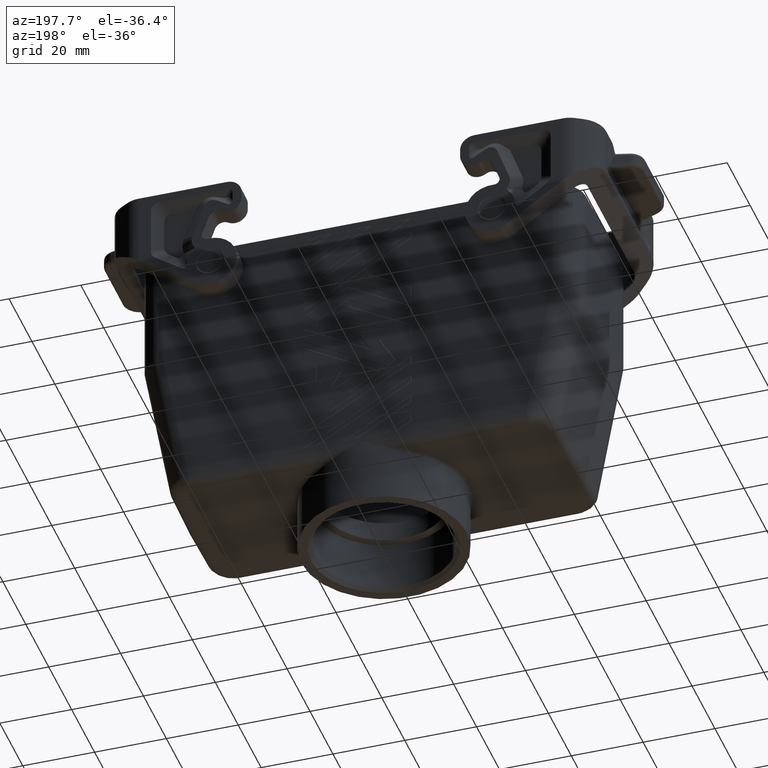
[diagram: clean part render]
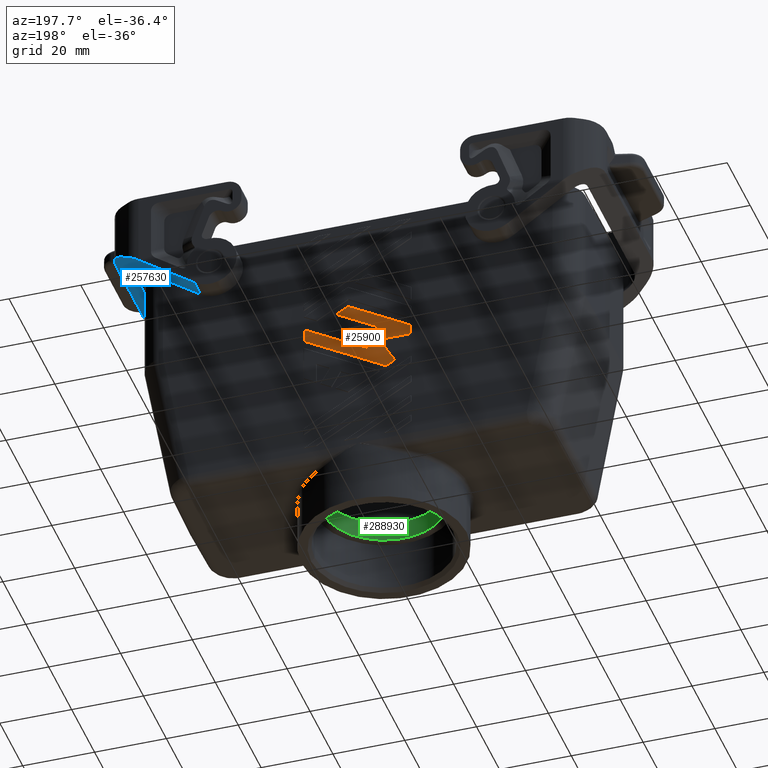
[diagram: same view with three faces highlighted in distinct colors, each labeled with its STEP entity id]
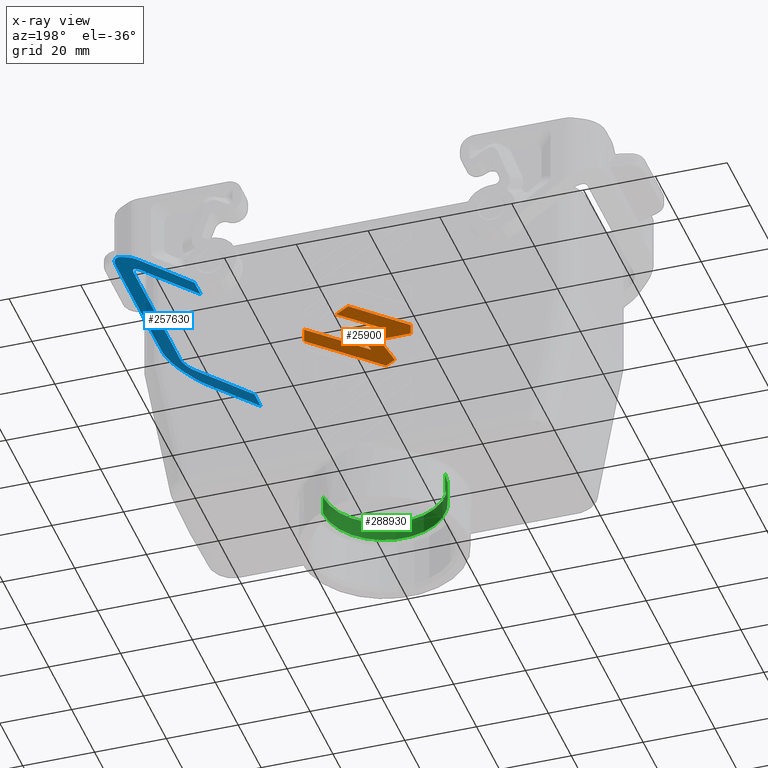
[diagram: x-ray of the same camera — body ghosted, the three highlighted faces saturated]
A machine part, auxiliary view with three faces highlighted in distinct colors.
The next image is the same camera in x-ray (body ghosted, the three faces saturated) — at least one of them is partly hidden behind the body in this view.
Their STEP definitions:

[orange] entity #25900 — the highlighted planar face has unit normal (0, 1, 0).
#24870=CARTESIAN_POINT('',(-2.74650201756106,24.6172314925381,-23.15));
#24880=DIRECTION('',(0.,0.,-1.));
#24890=DIRECTION('',(-1.,0.,0.));
#24900=AXIS2_PLACEMENT_3D('',#24870,#24880,#24890);
#24910=PLANE('',#24900);
#24920=CARTESIAN_POINT('',(12.1034979824392,55.8098842073269,-23.15));
#24930=DIRECTION('',(0.,1.,0.));
#24940=VECTOR('',#24930,1.);
#24950=LINE('',#24920,#24940);
#24960=CARTESIAN_POINT('',(12.1034979824392,60.8235688921843,-23.15));
#24970=VERTEX_POINT('',#24960);
#24980=CARTESIAN_POINT('',(12.1034979824392,63.6096160826162,-23.15));
#24990=VERTEX_POINT('',#24980);
#25000=EDGE_CURVE('',#24970,#24990,#24950,.T.);
#25010=ORIENTED_EDGE('',*,*,#25000,.F.);
#25020=CARTESIAN_POINT('',(45.6034979824379,63.6096160826162,-23.15));
#25030=DIRECTION('',(-1.,0.,0.));
#25040=VECTOR('',#25030,1.);
#25050=LINE('',#25020,#25040);
#25060=CARTESIAN_POINT('',(3.22907326855182,63.6096160826162,-23.15));
#25070=VERTEX_POINT('',#25060);
#25080=EDGE_CURVE('',#24990,#25070,#25050,.T.);
#25090=ORIENTED_EDGE('',*,*,#25080,.F.);
#25100=CARTESIAN_POINT('',(-1.27410402925311,55.8098842073269,-23.15));
#25110=DIRECTION('',(0.499999999999979,0.866025403784451,0.));
#25120=VECTOR('',#25110,1.);
#25130=LINE('',#25100,#25120);
#25140=CARTESIAN_POINT('',(7.66628562549539,71.2950933288153,-23.15));
#25150=VERTEX_POINT('',#25140);
#25160=EDGE_CURVE('',#25070,#25150,#25130,.T.);
#25170=ORIENTED_EDGE('',*,*,#25160,.F.);
#25180=CARTESIAN_POINT('',(45.6034979824379,49.3920335622317,-23.15));
#25190=DIRECTION('',(-0.866025403784451,0.499999999999979,0.));
#25200=VECTOR('',#25190,1.);
#25210=LINE('',#25180,#25200);
#25220=CARTESIAN_POINT('',(5.2534979824392,72.6881169240311,-23.15));
#25230=VERTEX_POINT('',#25220);
#25240=EDGE_CURVE('',#25150,#25230,#25210,.T.);
#25250=ORIENTED_EDGE('',*,*,#25240,.F.);
#25260=CARTESIAN_POINT('',(45.6034979824379,95.9842002858316,-23.15));
#25270=DIRECTION('',(-0.86602540378444,-0.499999999999997,0.));
#25280=VECTOR('',#25270,1.);
#25290=LINE('',#25260,#25280);
#25300=CARTESIAN_POINT('',(-17.596502017561,59.4956632730481,-23.15));
#25310=VERTEX_POINT('',#25300);
#25320=EDGE_CURVE('',#25230,#25310,#25290,.T.);
#25330=ORIENTED_EDGE('',*,*,#25320,.F.);
#25340=CARTESIAN_POINT('',(-17.596502017561,55.8098842073269,-23.15));
#25350=DIRECTION('',(0.,-1.,0.));
#25360=VECTOR('',#25350,1.);
#25370=LINE('',#25340,#25360);
#25380=CARTESIAN_POINT('',(-17.596502017561,55.6851514963967,-23.15));
#25390=VERTEX_POINT('',#25380);
#25400=EDGE_CURVE('',#25310,#25390,#25370,.T.);
#25410=ORIENTED_EDGE('',*,*,#25400,.F.);
#25420=CARTESIAN_POINT('',(45.6034979824379,92.1736885091806,-23.15));
#25430=DIRECTION('',(0.866025403784438,0.500000000000001,0.));
#25440=VECTOR('',#25430,1.);
#25450=LINE('',#25420,#25440);
#25460=CARTESIAN_POINT('',(1.06330560357456,66.458396449486,-23.15));
#25470=VERTEX_POINT('',#25460);
#25480=EDGE_CURVE('',#25390,#25470,#25450,.T.);
#25490=ORIENTED_EDGE('',*,*,#25480,.F.);
#25500=CARTESIAN_POINT('',(-5.084615805905,55.8098842073269,-23.15));
#25510=DIRECTION('',(-0.499999999999997,-0.86602540378444,0.));
#25520=VECTOR('',#25510,1.);
#25530=LINE('',#25500,#25520);
#25540=CARTESIAN_POINT('',(-2.48669439642559,60.3096160826162,-23.15));
#25550=VERTEX_POINT('',#25540);
#25560=EDGE_CURVE('',#25470,#25550,#25530,.T.);
#25570=ORIENTED_EDGE('',*,*,#25560,.F.);
#25580=CARTESIAN_POINT('',(45.6034979824379,60.3096160826162,-23.15));
#25590=DIRECTION('',(1.,1.04491578788246E-15,0.));
#25600=VECTOR('',#25590,1.);
#25610=LINE('',#25580,#25600);
#25620=CARTESIAN_POINT('',(4.61330560357468,60.3096160826162,-23.15));
#25630=VERTEX_POINT('',#25620);
#25640=EDGE_CURVE('',#25550,#25630,#25610,.T.);
#25650=ORIENTED_EDGE('',*,*,#25640,.F.);
#25660=CARTESIAN_POINT('',(45.6034979824379,83.9753146866874,-23.15));
#25670=DIRECTION('',(-0.86602540378444,-0.499999999999999,0.));
#25680=VECTOR('',#25670,1.);
#25690=LINE('',#25660,#25680);
#25700=CARTESIAN_POINT('',(-8.64650201756081,52.654062583151,-23.15));
#25710=VERTEX_POINT('',#25700);
#25720=EDGE_CURVE('',#25630,#25710,#25690,.T.);
#25730=ORIENTED_EDGE('',*,*,#25720,.F.);
#25740=CARTESIAN_POINT('',(45.6034979824379,21.3328104796124,-23.15));
#25750=DIRECTION('',(0.866025403784424,-0.500000000000025,0.));
#25760=VECTOR('',#25750,1.);
#25770=LINE('',#25740,#25760);
#25780=CARTESIAN_POINT('',(-5.3465020175608,50.7488066948251,-23.15));
#25790=VERTEX_POINT('',#25780);
#25800=EDGE_CURVE('',#25710,#25790,#25770,.T.);
#25810=ORIENTED_EDGE('',*,*,#25800,.F.);
#25820=CARTESIAN_POINT('',(45.6034979824379,80.1648029100365,-23.15));
#25830=DIRECTION('',(0.866025403784434,0.500000000000008,0.));
#25840=VECTOR('',#25830,1.);
#25850=LINE('',#25820,#25840);
#25860=EDGE_CURVE('',#25790,#24970,#25850,.T.);
#25870=ORIENTED_EDGE('',*,*,#25860,.F.);
#25880=EDGE_LOOP('',(#25870,#25810,#25730,#25650,#25570,#25490,#25410,
#25330,#25250,#25170,#25090,#25010));
#25890=FACE_OUTER_BOUND('',#25880,.T.);
#25900=ADVANCED_FACE('',(#25890),#24910,.T.);

[blue] entity #257630 — the highlighted planar face has unit normal (-0.5736, -0, 0.8192).
#195030=CARTESIAN_POINT('',(-62.996502017567,26.1518441133054,
-23.5000000000006));
#195040=VERTEX_POINT('',#195030);
#195070=CARTESIAN_POINT('',(293.421653890029,275.718523634547,
-23.5000000000002));
#195080=DIRECTION('',(-0.819152044289058,-0.573576436350952,
-9.4353051172269E-16));
#195090=VECTOR('',#195080,1.);
#195100=LINE('',#195070,#195090);
#195110=CARTESIAN_POINT('',(-46.2983252901939,37.8440333321673,
-23.5000000000006));
#195120=VERTEX_POINT('',#195110);
#195130=EDGE_CURVE('',#195120,#195040,#195100,.T.);
#195950=CARTESIAN_POINT('',(-46.2983252901939,37.8440333321673,
-27.7500000000006));
#195960=DIRECTION('',(1.8624316551225E-16,1.37901244163817E-15,-1.));
#195970=VECTOR('',#195960,1.);
#195980=LINE('',#195950,#195970);
#195990=CARTESIAN_POINT('',(-46.2983252901934,37.8440333321677,
-29.0000000000006));
#196000=VERTEX_POINT('',#195990);
#196010=EDGE_CURVE('',#195120,#196000,#195980,.T.);
#206670=CARTESIAN_POINT('',(294.366421964879,276.380057362416,
-29.0000000000002));
#206680=DIRECTION('',(0.819152044289058,0.573576436350952,
9.16093054524447E-16));
#206690=VECTOR('',#206680,1.);
#206700=LINE('',#206670,#206690);
#206710=CARTESIAN_POINT('',(-61.8888071573089,26.9274604044941,
-29.0000000000006));
#206720=VERTEX_POINT('',#206710);
#206730=EDGE_CURVE('',#206720,#196000,#206700,.T.);
#216900=CARTESIAN_POINT('',(-65.996502017567,24.0512214986769,
29.7499999999997));
#216910=DIRECTION('',(4.93038065763132E-32,1.24860357320652E-15,1.));
#216920=VECTOR('',#216910,1.);
#216930=LINE('',#216900,#216920);
#216940=CARTESIAN_POINT('',(-65.996502017567,24.0512214986768,
-20.5000000000006));
#216950=VERTEX_POINT('',#216940);
#216960=CARTESIAN_POINT('',(-65.996502017567,24.0512214986769,
20.4999999999996));
#216970=VERTEX_POINT('',#216960);
#216980=EDGE_CURVE('',#216950,#216970,#216930,.T.);
#220740=CARTESIAN_POINT('',(-70.996502017567,20.5501838076291,
-20.0510709974921));
#220750=VERTEX_POINT('',#220740);
#220780=CARTESIAN_POINT('',(-70.996502017567,20.5501838076292,
29.7499999999997));
#220790=DIRECTION('',(4.93038065763132E-32,1.24860357320652E-15,1.));
#220800=VECTOR('',#220790,1.);
#220810=LINE('',#220780,#220800);
#220820=CARTESIAN_POINT('',(-70.996502017567,20.5501838076292,
20.0510709974912));
#220830=VERTEX_POINT('',#220820);
#220840=EDGE_CURVE('',#220750,#220830,#220810,.T.);
#233450=CARTESIAN_POINT('',(293.421653890029,275.718523634547,
23.4999999999992));
#233460=DIRECTION('',(-0.819152044289058,-0.573576436350952,
9.4353051172269E-16));
#233470=VECTOR('',#233460,1.);
#233480=LINE('',#233450,#233470);
#233490=CARTESIAN_POINT('',(-46.2983252901927,37.8440333321681,
23.4999999999996));
#233500=VERTEX_POINT('',#233490);
#233510=CARTESIAN_POINT('',(-62.996502017567,26.1518441133055,
23.4999999999996));
#233520=VERTEX_POINT('',#233510);
#233530=EDGE_CURVE('',#233500,#233520,#233480,.T.);
#244640=CARTESIAN_POINT('',(-61.8888071573089,26.9274604044942,
28.9999999999996));
#244650=VERTEX_POINT('',#244640);
#244680=CARTESIAN_POINT('',(294.366421964879,276.380057362416,
28.9999999999992));
#244690=DIRECTION('',(0.819152044289058,0.573576436350952,
-9.4353051172269E-16));
#244700=VECTOR('',#244690,1.);
#244710=LINE('',#244680,#244700);
#244720=CARTESIAN_POINT('',(-46.2983252901927,37.8440333321681,
28.9999999999996));
#244730=VERTEX_POINT('',#244720);
#244740=EDGE_CURVE('',#244650,#244730,#244710,.T.);
#255310=CARTESIAN_POINT('',(-46.2983252901927,37.8440333321681,
27.7499999999996));
#255320=DIRECTION('',(1.8624316551225E-16,1.37901244163817E-15,1.));
#255330=VECTOR('',#255320,1.);
#255340=LINE('',#255310,#255330);
#255350=EDGE_CURVE('',#233500,#244730,#255340,.T.);
#256090=CARTESIAN_POINT('',(-64.888807157309,24.8268377898654,
28.1961524227062));
#256100=VERTEX_POINT('',#256090);
#256130=CARTESIAN_POINT('',(-61.888807157309,26.9274604044942,
22.9999999999996));
#256140=DIRECTION('',(0.573576436350952,-0.819152044289058,
1.02279616949874E-15));
#256150=DIRECTION('',(0.819152044289058,0.573576436350952,
-9.43530511722632E-16));
#256160=AXIS2_PLACEMENT_3D('',#256130,#256140,#256150);
#256170=ELLIPSE('',#256160,7.32464753256815,6.);
#256180=EDGE_CURVE('',#244650,#256100,#256170,.T.);
#256410=CARTESIAN_POINT('',(-66.9965020175672,23.3510139604672,
26.9792742277666));
#256420=VERTEX_POINT('',#256410);
#256450=CARTESIAN_POINT('',(294.366421964879,276.380057362417,
235.612255664182));
#256460=DIRECTION('',(-0.740512440111195,-0.518512392703799,
-0.427535056636465));
#256470=VECTOR('',#256460,1.);
#256480=LINE('',#256450,#256470);
#256490=EDGE_CURVE('',#256100,#256420,#256480,.T.);
#256690=CARTESIAN_POINT('',(-62.996502017567,26.1518441133055,
20.0510709974912));
#256700=DIRECTION('',(0.573576436350952,-0.819152044289058,
1.02279616949874E-15));
#256710=DIRECTION('',(0.819152044289058,0.573576436350952,
-9.43530511722692E-16));
#256720=AXIS2_PLACEMENT_3D('',#256690,#256700,#256710);
#256730=ELLIPSE('',#256720,9.76619671009087,8.);
#256740=EDGE_CURVE('',#256420,#220830,#256730,.T.);
#256950=CARTESIAN_POINT('',(-62.996502017567,26.1518441133055,
20.4999999999996));
#256960=DIRECTION('',(0.573576436350952,-0.819152044289058,
1.02279616949874E-15));
#256970=DIRECTION('',(0.819152044289058,0.573576436350952,
-9.4353051172269E-16));
#256980=AXIS2_PLACEMENT_3D('',#256950,#256960,#256970);
#256990=ELLIPSE('',#256980,3.66232376628407,3.);
#257000=EDGE_CURVE('',#233520,#216970,#256990,.T.);
#257130=CARTESIAN_POINT('',(-44.9563051468669,38.7837259529538,
-27.7500000000004));
#257140=DIRECTION('',(0.573576436350952,-0.819152044289058,
1.02279616949874E-15));
#257150=DIRECTION('',(0.819152044289058,0.573576436350952,
-9.4353051172269E-16));
#257160=AXIS2_PLACEMENT_3D('',#257130,#257140,#257150);
#257170=PLANE('',#257160);
#257180=ORIENTED_EDGE('',*,*,#196010,.T.);
#257190=ORIENTED_EDGE('',*,*,#195130,.F.);
#257200=CARTESIAN_POINT('',(-62.996502017567,26.1518441133055,
-20.5000000000006));
#257210=DIRECTION('',(0.573576436350952,-0.819152044289058,
1.02279616949874E-15));
#257220=DIRECTION('',(0.819152044289058,0.573576436350952,
3.86493913326959E-15));
#257230=AXIS2_PLACEMENT_3D('',#257200,#257210,#257220);
#257240=ELLIPSE('',#257230,3.66232376628407,3.);
#257250=EDGE_CURVE('',#216950,#195040,#257240,.T.);
#257260=ORIENTED_EDGE('',*,*,#257250,.T.);
#257270=ORIENTED_EDGE('',*,*,#216980,.F.);
#257280=ORIENTED_EDGE('',*,*,#257000,.T.);
#257290=ORIENTED_EDGE('',*,*,#233530,.T.);
#257300=ORIENTED_EDGE('',*,*,#255350,.F.);
#257310=ORIENTED_EDGE('',*,*,#244740,.T.);
#257320=ORIENTED_EDGE('',*,*,#256180,.F.);
#257330=ORIENTED_EDGE('',*,*,#256490,.F.);
#257340=ORIENTED_EDGE('',*,*,#256740,.F.);
#257350=ORIENTED_EDGE('',*,*,#220840,.T.);
#257360=CARTESIAN_POINT('',(-62.996502017567,26.1518441133055,
-20.0510709974922));
#257370=DIRECTION('',(0.573576436350952,-0.819152044289058,
1.02279616949874E-15));
#257380=DIRECTION('',(0.819152044289058,0.573576436350952,
3.86493913326959E-15));
#257390=AXIS2_PLACEMENT_3D('',#257360,#257370,#257380);
#257400=ELLIPSE('',#257390,9.76619671009087,8.);
#257410=CARTESIAN_POINT('',(-66.996502017567,23.3510139604673,
-26.9792742277677));
#257420=VERTEX_POINT('',#257410);
#257430=EDGE_CURVE('',#220750,#257420,#257400,.T.);
#257440=ORIENTED_EDGE('',*,*,#257430,.F.);
#257450=CARTESIAN_POINT('',(294.366421964879,276.380057362416,
-235.612255664183));
#257460=DIRECTION('',(-0.740512440111196,-0.518512392703798,
0.427535056636465));
#257470=VECTOR('',#257460,1.);
#257480=LINE('',#257450,#257470);
#257490=CARTESIAN_POINT('',(-64.888807157309,24.8268377898654,
-28.1961524227072));
#257500=VERTEX_POINT('',#257490);
#257510=EDGE_CURVE('',#257500,#257420,#257480,.T.);
#257520=ORIENTED_EDGE('',*,*,#257510,.T.);
#257530=CARTESIAN_POINT('',(-61.888807157309,26.9274604044941,
-23.0000000000006));
#257540=DIRECTION('',(0.573576436350952,-0.819152044289058,
1.02279616949874E-15));
#257550=DIRECTION('',(0.819152044289058,0.573576436350952,
3.86493913326953E-15));
#257560=AXIS2_PLACEMENT_3D('',#257530,#257540,#257550);
#257570=ELLIPSE('',#257560,7.32464753256815,6.);
#257580=EDGE_CURVE('',#257500,#206720,#257570,.T.);
#257590=ORIENTED_EDGE('',*,*,#257580,.F.);
#257600=ORIENTED_EDGE('',*,*,#206730,.F.);
#257610=EDGE_LOOP('',(#257600,#257590,#257520,#257440,#257350,#257340,
#257330,#257320,#257310,#257300,#257290,#257280,#257270,#257260,#257190,
#257180));
#257620=FACE_OUTER_BOUND('',#257610,.T.);
#257630=ADVANCED_FACE('',(#257620),#257170,.F.);

[green] entity #288930 — the highlighted cylindrical surface (partial cylindrical patch) has radius 17 mm, axis along (0, 0, -1).
#7110=CARTESIAN_POINT('',(-2.74650201756106,99.600393,
-1.06581410364015E-14));
#7120=DIRECTION('',(0.,1.,0.));
#7130=DIRECTION('',(-1.,0.,0.));
#7140=AXIS2_PLACEMENT_3D('',#7110,#7120,#7130);
#7150=CIRCLE('',#7140,17.);
#7160=CARTESIAN_POINT('',(-19.7465020175611,99.600393,
-1.06581410364015E-14));
#7170=VERTEX_POINT('',#7160);
#7180=CARTESIAN_POINT('',(14.2534979824389,99.600393,-8.576241477851E-15
));
#7190=VERTEX_POINT('',#7180);
#7200=EDGE_CURVE('',#7170,#7190,#7150,.T.);
#70960=CARTESIAN_POINT('',(-2.74650201756106,94.100393,
-1.06581410364015E-14));
#70970=DIRECTION('',(0.,1.,0.));
#70980=DIRECTION('',(-1.,0.,0.));
#70990=AXIS2_PLACEMENT_3D('',#70960,#70970,#70980);
#71000=CIRCLE('',#70990,17.);
#71010=CARTESIAN_POINT('',(-19.7465020175611,94.100393,
-1.06581410364015E-14));
#71020=VERTEX_POINT('',#71010);
#71030=CARTESIAN_POINT('',(14.2534979824389,94.100393,
-8.576241477851E-15));
#71040=VERTEX_POINT('',#71030);
#71050=EDGE_CURVE('',#71020,#71040,#71000,.T.);
#104860=CARTESIAN_POINT('',(14.2534979824389,99.600393,
-8.576241477851E-15));
#104870=DIRECTION('',(0.,1.,0.));
#104880=VECTOR('',#104870,1.);
#104890=LINE('',#104860,#104880);
#104900=EDGE_CURVE('',#71040,#7190,#104890,.T.);
#104930=CARTESIAN_POINT('',(-19.7465020175611,99.600393,
-1.06581410364015E-14));
#104940=DIRECTION('',(0.,1.,0.));
#104950=VECTOR('',#104940,1.);
#104960=LINE('',#104930,#104950);
#104970=EDGE_CURVE('',#71020,#7170,#104960,.T.);
#288820=CARTESIAN_POINT('',(-2.74650201756106,99.600393,
-1.06581410364015E-14));
#288830=DIRECTION('',(0.,1.,0.));
#288840=DIRECTION('',(-1.,0.,0.));
#288850=AXIS2_PLACEMENT_3D('',#288820,#288830,#288840);
#288860=CYLINDRICAL_SURFACE('',#288850,17.);
#288870=ORIENTED_EDGE('',*,*,#71050,.F.);
#288880=ORIENTED_EDGE('',*,*,#104900,.F.);
#288890=ORIENTED_EDGE('',*,*,#7200,.T.);
#288900=ORIENTED_EDGE('',*,*,#104970,.T.);
#288910=EDGE_LOOP('',(#288900,#288890,#288880,#288870));
#288920=FACE_OUTER_BOUND('',#288910,.T.);
#288930=ADVANCED_FACE('',(#288920),#288860,.F.);